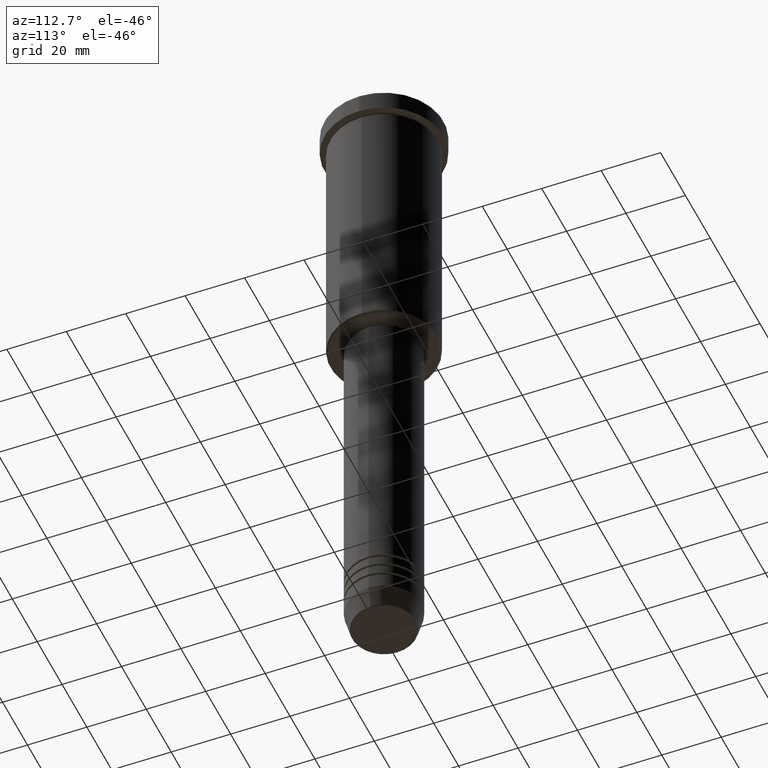
[diagram: clean part render]
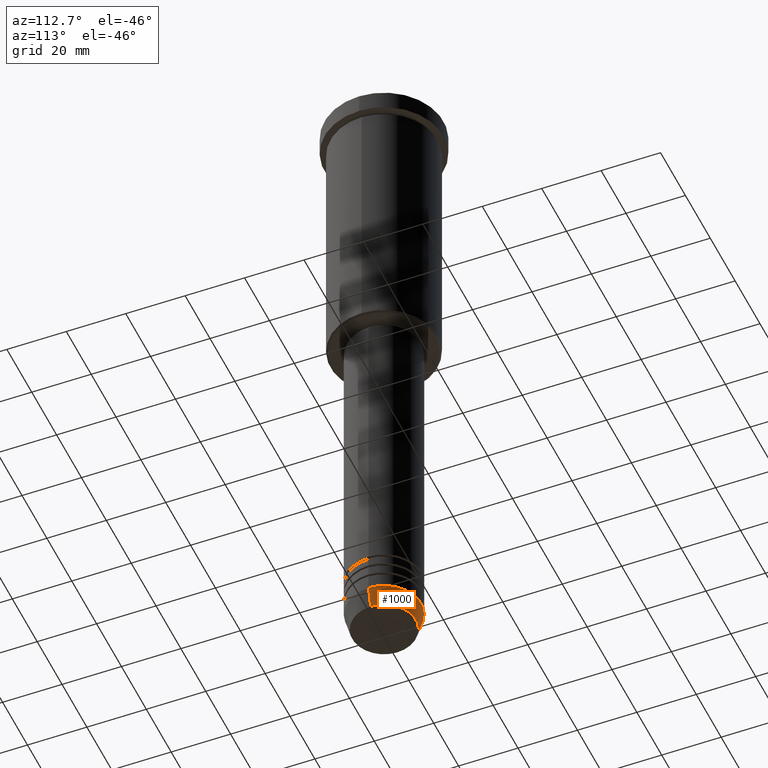
[diagram: same view with one face highlighted and labeled with its STEP entity id]
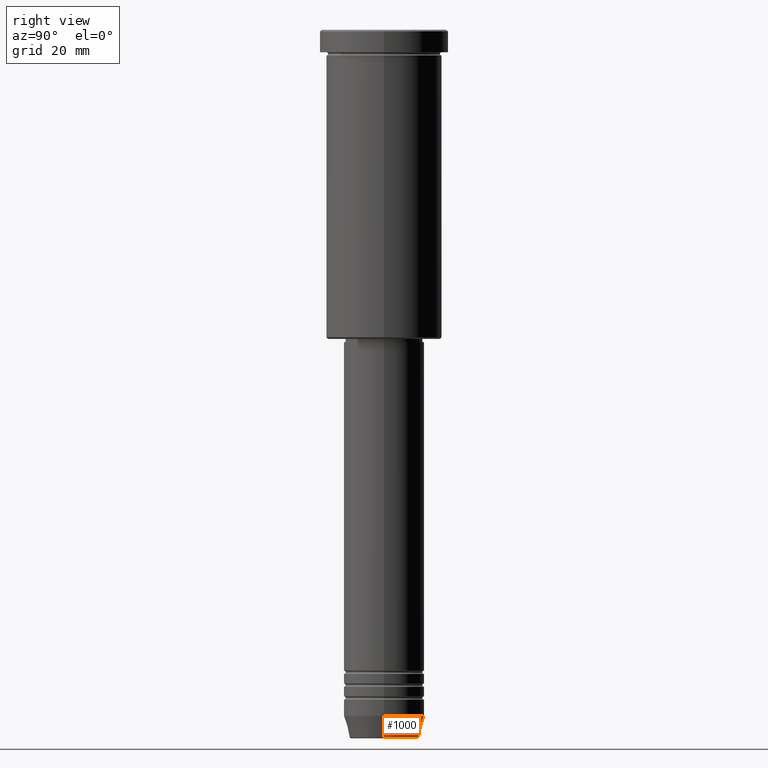
[diagram: same view with one face highlighted and labeled with its STEP entity id]
A machine part, auxiliary view. The second image highlights one B-rep face of the part: STEP entity #1000.
A second angle (right view) of the same face is appended — the face is thin or edge-on in the first view.
In plain terms, the highlighted conical surface has half-angle 15 deg.
Its self-contained STEP definition (entity closure, byte-faithful):
#19 = EDGE_CURVE ( 'NONE', #510, #104, #490, .T. ) ;
#20 = FACE_OUTER_BOUND ( 'NONE', #481, .T. ) ;
#104 = VERTEX_POINT ( 'NONE', #440 ) ;
#137 = ORIENTED_EDGE ( 'NONE', *, *, #250, .F. ) ;
#149 = VERTEX_POINT ( 'NONE', #688 ) ;
#178 = ORIENTED_EDGE ( 'NONE', *, *, #19, .T. ) ;
#179 = DIRECTION ( 'NONE',  ( 1.000000000000000000, 0.000000000000000000, 0.000000000000000000 ) ) ;
#204 = EDGE_CURVE ( 'NONE', #1067, #510, #1147, .T. ) ;
#209 = AXIS2_PLACEMENT_3D ( 'NONE', #1026, #741, #290 ) ;
#218 = DIRECTION ( 'NONE',  ( -0.2588190451025213501, 3.169619151431772337E-17, 0.9659258262890680902 ) ) ;
#250 = EDGE_CURVE ( 'NONE', #1067, #149, #941, .T. ) ;
#290 = DIRECTION ( 'NONE',  ( 1.000000000000000000, 0.000000000000000000, 0.000000000000000000 ) ) ;
#325 = CONICAL_SURFACE ( 'NONE', #209, 12.50000000000000000, 0.2617993877991500740 ) ;
#326 = CARTESIAN_POINT ( 'NONE',  ( 10.72365507213719127, 0.000000000000000000, -219.6294095225512422 ) ) ;
#343 = VECTOR ( 'NONE', #1127, 1000.000000000000000 ) ;
#357 = ORIENTED_EDGE ( 'NONE', *, *, #204, .T. ) ;
#363 = VECTOR ( 'NONE', #218, 1000.000000000000000 ) ;
#380 = CARTESIAN_POINT ( 'NONE',  ( -12.50000000000000000, 1.530808498934191521E-15, -213.0000000000000000 ) ) ;
#440 = CARTESIAN_POINT ( 'NONE',  ( -12.50000000000000000, 1.530808498934191521E-15, -213.0000000000000000 ) ) ;
#481 = EDGE_LOOP ( 'NONE', ( #357, #178, #823, #137 ) ) ;
#490 = LINE ( 'NONE', #380, #363 ) ;
#510 = VERTEX_POINT ( 'NONE', #773 ) ;
#533 = CARTESIAN_POINT ( 'NONE',  ( 0.000000000000000000, 0.000000000000000000, -213.0000000000000000 ) ) ;
#589 = AXIS2_PLACEMENT_3D ( 'NONE', #991, #1081, #179 ) ;
#670 = CIRCLE ( 'NONE', #935, 12.50000000000000000 ) ;
#688 = CARTESIAN_POINT ( 'NONE',  ( 12.50000000000000000, 0.000000000000000000, -213.0000000000000000 ) ) ;
#741 = DIRECTION ( 'NONE',  ( -0.000000000000000000, -0.000000000000000000, 1.000000000000000000 ) ) ;
#746 = EDGE_CURVE ( 'NONE', #149, #104, #670, .T. ) ;
#773 = CARTESIAN_POINT ( 'NONE',  ( -10.72365507213719127, 1.422038742429750516E-15, -219.6294095225512422 ) ) ;
#823 = ORIENTED_EDGE ( 'NONE', *, *, #746, .F. ) ;
#841 = CARTESIAN_POINT ( 'NONE',  ( 12.50000000000000000, 0.000000000000000000, -213.0000000000000000 ) ) ;
#899 = DIRECTION ( 'NONE',  ( -0.000000000000000000, -0.000000000000000000, 1.000000000000000000 ) ) ;
#935 = AXIS2_PLACEMENT_3D ( 'NONE', #533, #899, #979 ) ;
#941 = LINE ( 'NONE', #841, #343 ) ;
#979 = DIRECTION ( 'NONE',  ( 1.000000000000000000, 0.000000000000000000, 0.000000000000000000 ) ) ;
#991 = CARTESIAN_POINT ( 'NONE',  ( 0.000000000000000000, 0.000000000000000000, -219.6294095225512422 ) ) ;
#1000 = ADVANCED_FACE ( 'NONE', ( #20 ), #325, .T. ) ;
#1026 = CARTESIAN_POINT ( 'NONE',  ( 0.000000000000000000, 0.000000000000000000, -213.0000000000000000 ) ) ;
#1067 = VERTEX_POINT ( 'NONE', #326 ) ;
#1081 = DIRECTION ( 'NONE',  ( -0.000000000000000000, -0.000000000000000000, 1.000000000000000000 ) ) ;
#1127 = DIRECTION ( 'NONE',  ( 0.2588190451025213501, 0.000000000000000000, 0.9659258262890680902 ) ) ;
#1147 = CIRCLE ( 'NONE', #589, 10.72365507213719127 ) ;